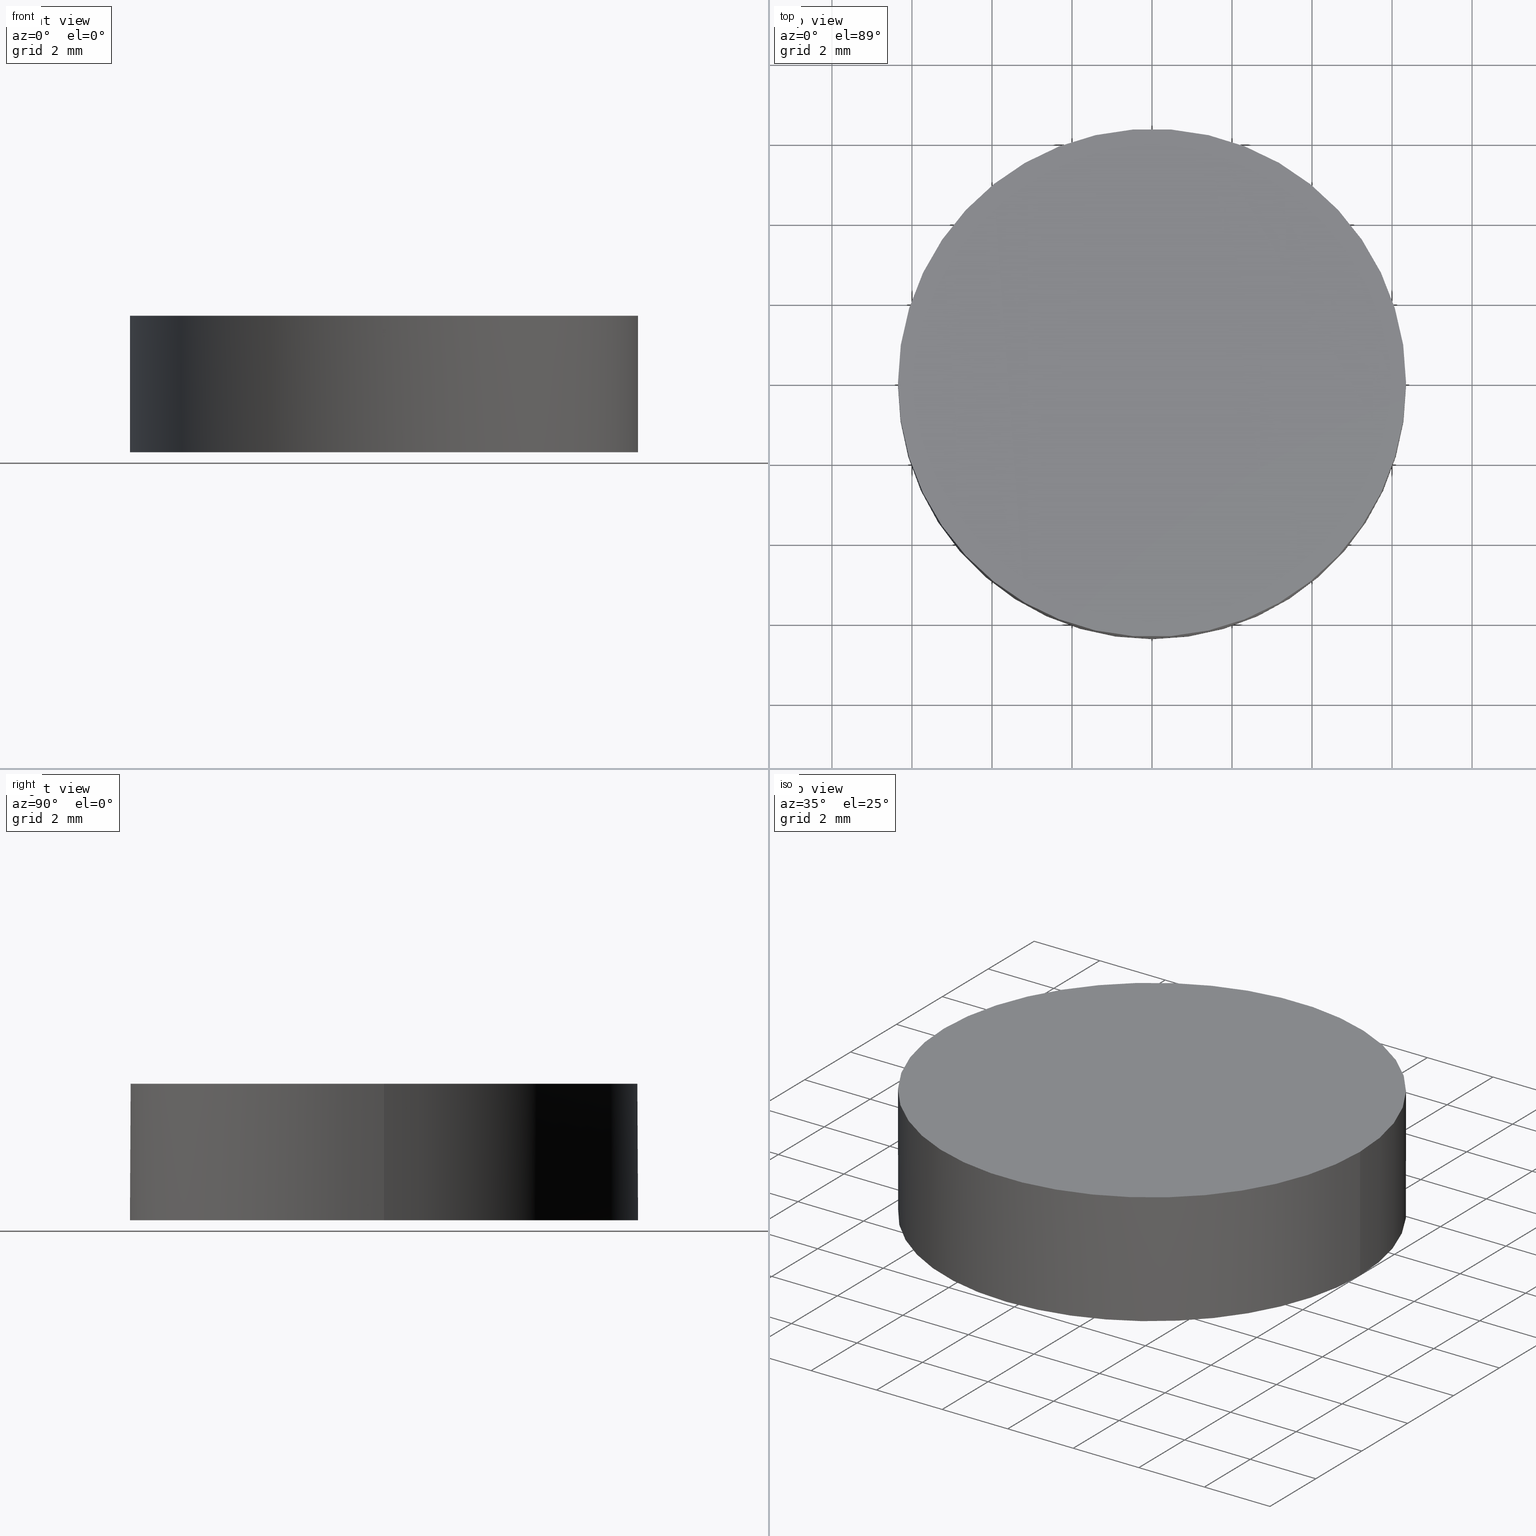
[diagram: canonical four-view strip — front | top / right | iso, engineering-drawing reading convention]
A machine part, canonical four-view strip (front | top / right | iso — engineering-drawing reading convention). The complete STEP part file that produces these views, byte-faithful:
ISO-10303-21;
HEADER;
FILE_DESCRIPTION (( 'STEP AP203' ),
    '1' );
FILE_NAME ('112-0119E BK7 pl-cv 12.7 F-125.STEP',
    '2019-01-14T11:44:51',
    ( '' ),
    ( '' ),
    'SwSTEP 2.0',
    'SolidWorks 2017',
    '' );
FILE_SCHEMA (( 'CONFIG_CONTROL_DESIGN' ));
ENDSEC;

DATA;
#1 = ORIENTED_EDGE ( 'NONE', *, *, #120, .F. ) ;
#2 = CALENDAR_DATE ( 2019, 14, 1 ) ;
#3 = ORIENTED_EDGE ( 'NONE', *, *, #49, .F. ) ;
#4 = LOCAL_TIME ( 13, 44, 51.00000000000000000, #213 ) ;
#5 = ORIENTED_EDGE ( 'NONE', *, *, #100, .T. ) ;
#6 = CARTESIAN_POINT ( 'NONE',  ( 2.498001805406600200E-016, 1.221245327087670000E-015, -0.3116876092362069800 ) ) ;
#7 = DIRECTION ( 'NONE',  ( 0.0000000000000000000, 0.0000000000000000000, 1.000000000000000000 ) ) ;
#8 = CARTESIAN_POINT ( 'NONE',  ( 0.0000000000000000000, 0.0000000000000000000, -64.84000000000000300 ) ) ;
#9 = CARTESIAN_POINT ( 'NONE',  ( -6.356528664066489800, 6.425951033630017400, -0.6330899617783269900 ) ) ;
#10 = CARTESIAN_POINT ( 'NONE',  ( 2.498001805406600200E-016, 1.221245327087670000E-015, 3.100000000000000500 ) ) ;
#11 = CIRCLE ( 'NONE', #129, 6.349999999999999600 ) ;
#12 = APPROVAL ( #131, 'UNSPECIFIED' ) ;
#13 = PERSON_AND_ORGANIZATION_ROLE ( 'creator' ) ;
#14 = ORIENTED_EDGE ( 'NONE', *, *, #92, .T. ) ;
#15 = APPROVAL_ROLE ( '' ) ;
#16 = CARTESIAN_POINT ( 'NONE',  ( -1.391880571784052100E-014, 6.349999999999981000, -0.3116876092362075300 ) ) ;
#17 = DATE_AND_TIME ( #2, #48 ) ;
#18 = CALENDAR_DATE ( 2019, 14, 1 ) ;
#19 = DIRECTION ( 'NONE',  ( 1.000000000000000000, 0.0000000000000000000, 0.0000000000000000000 ) ) ;
#20 = CARTESIAN_POINT ( 'NONE',  ( 6.349999999999999600, 1.221245327087670000E-015, -0.3116876092362069800 ) ) ;
#21 = LINE ( 'NONE', #224, #140 ) ;
#22 = CARTESIAN_POINT ( 'NONE',  ( -4.271726891306665100, -2.149036805498219400, 0.001348661855884010900 ) ) ;
#23 = CARTESIAN_POINT ( 'NONE',  ( -1.105452618250814200E-014, -6.425951033630023600, -0.3192068142882365000 ) ) ;
#24 = DIRECTION ( 'NONE',  ( 1.000000000000000000, 0.0000000000000000000, 0.0000000000000000000 ) ) ;
#25 = DIRECTION ( 'NONE',  ( 1.000000000000000000, 2.240790868895130200E-016, 1.936499352473490000E-016 ) ) ;
#26 = CARTESIAN_POINT ( 'NONE',  ( 4.271726891306651700, -2.149036805498218100, 0.001348661855880839600 ) ) ;
#27 = APPLICATION_PROTOCOL_DEFINITION ( 'international standard', 'config_control_design', 1994, #82 ) ;
#28 = DIRECTION ( 'NONE',  ( 0.0000000000000000000, 0.0000000000000000000, 1.000000000000000000 ) ) ;
#29 = ORIENTED_EDGE ( 'NONE', *, *, #49, .T. ) ;
#30 = PERSON_AND_ORGANIZATION ( #95, #32 ) ;
#31 = PERSON_AND_ORGANIZATION_ROLE ( 'classification_officer' ) ;
#32 = ORGANIZATION ( 'UNSPECIFIED', 'UNSPECIFIED', '' ) ;
#33 = LOCAL_TIME ( 13, 44, 51.00000000000000000, #107 ) ;
#34 = ORIENTED_EDGE ( 'NONE', *, *, #199, .F. ) ;
#35 = MANIFOLD_SOLID_BREP ( 'Imported1', #197 ) ;
#36 = EDGE_CURVE ( 'NONE', #98, #202, #53, .T. ) ;
#37 = FACE_OUTER_BOUND ( 'NONE', #123, .T. ) ;
#38 = CALENDAR_DATE ( 2019, 14, 1 ) ;
#39 = ORIENTED_EDGE ( 'NONE', *, *, #157, .T. ) ;
#40 = CC_DESIGN_PERSON_AND_ORGANIZATION_ASSIGNMENT ( #235, #13, ( #125 ) ) ;
#41 = CARTESIAN_POINT ( 'NONE',  ( 6.398493793489575600, 2.149036805498215900, -0.2092027377904508200 ) ) ;
#42 = CARTESIAN_POINT ( 'NONE',  ( -1.305848864697712000E-014, 2.149036805498214100, 0.1067526330159033200 ) ) ;
#43 = CARTESIAN_POINT ( 'NONE',  ( 2.498001805406600200E-016, 1.221245327087670000E-015, -0.3116876092362069800 ) ) ;
#44 = DIRECTION ( 'NONE',  ( 1.000000000000000000, 0.0000000000000000000, 0.0000000000000000000 ) ) ;
#45 = CARTESIAN_POINT ( 'NONE',  ( 2.498001805406600200E-016, 1.221245327087670000E-015, -0.3116876092362069800 ) ) ;
#46 = CARTESIAN_POINT ( 'NONE',  ( -2.123147063980236600, -6.425951033630022700, -0.3192068142882328300 ) ) ;
#47 = EDGE_LOOP ( 'NONE', ( #57, #153, #147 ) ) ;
#48 = LOCAL_TIME ( 13, 44, 51.00000000000000000, #126 ) ;
#49 = EDGE_CURVE ( 'NONE', #155, #85, #142, .T. ) ;
#50 = CC_DESIGN_APPROVAL ( #200, ( #172 ) ) ;
#51 = VERTEX_POINT ( 'NONE', #86 ) ;
#52 = CC_DESIGN_PERSON_AND_ORGANIZATION_ASSIGNMENT ( #30, #31, ( #172 ) ) ;
#53 = CIRCLE ( 'NONE', #81, 6.349999999999999600 ) ;
#54 = CARTESIAN_POINT ( 'NONE',  ( 2.123147063980211200, 6.425951033630018300, -0.3192068142882361100 ) ) ;
#55 = ADVANCED_FACE ( 'NONE', ( #101 ), #195, .F. ) ;
#56 = CARTESIAN_POINT ( 'NONE',  ( -2.862293735361731700E-014, 6.425951033630019200, -0.3192068142882318300 ) ) ;
#57 = ORIENTED_EDGE ( 'NONE', *, *, #154, .F. ) ;
#58 = CARTESIAN_POINT ( 'NONE',  ( 4.243710364661558800, -6.425951033630021800, -0.4239194834896737300 ) ) ;
#59 = ORIENTED_EDGE ( 'NONE', *, *, #120, .T. ) ;
#60 = APPROVAL_ROLE ( '' ) ;
#61 = CIRCLE ( 'NONE', #217, 6.349999999999999600 ) ;
#62 = CC_DESIGN_SECURITY_CLASSIFICATION ( #172, ( #125 ) ) ;
#63 = PERSON_AND_ORGANIZATION_ROLE ( 'design_supplier' ) ;
#64 = AXIS2_PLACEMENT_3D ( 'NONE', #45, #152, #233 ) ;
#65 = CALENDAR_DATE ( 2019, 14, 1 ) ;
#66 = CC_DESIGN_APPROVAL ( #12, ( #102 ) ) ;
#67 = PERSON_AND_ORGANIZATION ( #95, #32 ) ;
#68 = DIRECTION ( 'NONE',  ( 1.000000000000000000, 0.0000000000000000000, 0.0000000000000000000 ) ) ;
#69 = LINE ( 'NONE', #83, #164 ) ;
#70 = PERSON_AND_ORGANIZATION ( #95, #32 ) ;
#71 = CARTESIAN_POINT ( 'NONE',  ( -1.393436866253321800E-014, 6.425951033630018300, -0.3192068142882365000 ) ) ;
#72 = CARTESIAN_POINT ( 'NONE',  ( -4.271726891306666800, 2.149036805498214500, 0.001348661855883685700 ) ) ;
#73 = CARTESIAN_POINT ( 'NONE',  ( -2.137163856168693400, -2.149036805498219000, 0.1067526330159074700 ) ) ;
#74 = CARTESIAN_POINT ( 'NONE',  ( -6.349999999999999600, 1.998896044546239400E-015, 3.100000000000000500 ) ) ;
#75 = APPROVAL_DATE_TIME ( #198, #12 ) ;
#76 = DIRECTION ( 'NONE',  ( 0.0000000000000000000, 0.0000000000000000000, 1.000000000000000000 ) ) ;
#77 = PERSON_AND_ORGANIZATION_ROLE ( 'design_owner' ) ;
#78 = APPROVAL_STATUS ( 'not_yet_approved' ) ;
#79 = CC_DESIGN_DATE_AND_TIME_ASSIGNMENT ( #219, #228, ( #102 ) ) ;
#80 = EDGE_LOOP ( 'NONE', ( #204, #14, #234, #59, #192 ) ) ;
#81 = AXIS2_PLACEMENT_3D ( 'NONE', #6, #87, #19 ) ;
#82 = APPLICATION_CONTEXT ( 'configuration controlled 3d designs of mechanical parts and assemblies' ) ;
#83 = CARTESIAN_POINT ( 'NONE',  ( -6.349999999999999600, 1.998896044546239400E-015, -0.3116876092362069800 ) ) ;
#84 = PERSON_AND_ORGANIZATION ( #95, #32 ) ;
#85 = VERTEX_POINT ( 'NONE', #74 ) ;
#86 = CARTESIAN_POINT ( 'NONE',  ( -6.349999999999999600, 1.998896044546239400E-015, -0.3116876092362069800 ) ) ;
#87 = DIRECTION ( 'NONE',  ( 0.0000000000000000000, 0.0000000000000000000, 1.000000000000000000 ) ) ;
#88 = CC_DESIGN_DATE_AND_TIME_ASSIGNMENT ( #139, #194, ( #172 ) ) ;
#89 = APPROVAL_PERSON_ORGANIZATION ( #70, #12, #114 ) ;
#90 = CARTESIAN_POINT ( 'NONE',  ( 2.123147063980214400, -6.425951033630021800, -0.3192068142882361100 ) ) ;
#91 = CARTESIAN_POINT ( 'NONE',  ( -2.137163856168694800, 2.149036805498215000, 0.1067526330159072200 ) ) ;
#92 = EDGE_CURVE ( 'NONE', #202, #51, #178, .T. ) ;
#93 = CIRCLE ( 'NONE', #143, 64.84000000000000300 ) ;
#94 = DIRECTION ( 'NONE',  ( 0.0000000000000000000, 0.0000000000000000000, 1.000000000000000000 ) ) ;
#95 = PERSON ( 'UNSPECIFIED', 'UNSPECIFIED', 'UNSPECIFIED', ('UNSPECIFIED'), ('UNSPECIFIED'), ('UNSPECIFIED') ) ;
#96 = DIRECTION ( 'NONE',  ( 1.000000000000000000, 0.0000000000000000000, 0.0000000000000000000 ) ) ;
#97 = DIRECTION ( 'NONE',  ( 1.000000000000000000, 0.0000000000000000000, -0.0000000000000000000 ) ) ;
#98 = VERTEX_POINT ( 'NONE', #20 ) ;
#99 = CARTESIAN_POINT ( 'NONE',  ( -6.356528664066486200, -6.425951033630024500, -0.6330899617783269900 ) ) ;
#100 = EDGE_CURVE ( 'NONE', #98, #155, #21, .T. ) ;
#101 = FACE_OUTER_BOUND ( 'NONE', #47, .T. ) ;
#102 = PRODUCT_DEFINITION ( 'UNKNOWN', '', #125, #189 ) ;
#103 =( BOUNDED_SURFACE ( )  B_SPLINE_SURFACE ( 3, 3, ( 
 ( #9, #146, #207, #56 ),
 ( #185, #72, #91, #163 ),
 ( #205, #22, #73, #226 ),
 ( #99, #231, #46, #133 ) ),
 .UNSPECIFIED., .F., .F., .F. ) 
 B_SPLINE_SURFACE_WITH_KNOTS ( ( 4, 4 ),
 ( 4, 4 ),
 ( 0.0000000000000000000, 1.000000000000000000 ),
 ( 0.0000000000000000000, 1.000000000000000000 ),
 .UNSPECIFIED. ) 
 GEOMETRIC_REPRESENTATION_ITEM ( )  RATIONAL_B_SPLINE_SURFACE ( (
 ( 1.000000000000000000, 0.9991887001634776100, 0.9991887001634776100, 1.000000000000000000),
 ( 0.9967180051995863100, 0.9959093680449089300, 0.9959093680449089300, 0.9967180051995863100),
 ( 0.9967180051995863100, 0.9959093680449089300, 0.9959093680449089300, 0.9967180051995863100),
 ( 1.000000000000000000, 0.9991887001634776100, 0.9991887001634776100, 1.000000000000000000) ) ) 
 REPRESENTATION_ITEM ( '' )  SURFACE ( )  );
#104 = EDGE_LOOP ( 'NONE', ( #174, #210, #39, #5, #29 ) ) ;
#105 = AXIS2_PLACEMENT_3D ( 'NONE', #203, #176, #68 ) ;
#106 = ORIENTED_EDGE ( 'NONE', *, *, #92, .F. ) ;
#107 = COORDINATED_UNIVERSAL_TIME_OFFSET ( 2, 0, .AHEAD. ) ;
#108 = AXIS2_PLACEMENT_3D ( 'NONE', #190, #191, #97 ) ;
#109 = SHAPE_DEFINITION_REPRESENTATION ( #221, #170 ) ;
#110 = CARTESIAN_POINT ( 'NONE',  ( 4.243710364661555300, 6.425951033630018300, -0.4239194834896737300 ) ) ;
#111 = PERSON_AND_ORGANIZATION ( #95, #32 ) ;
#112 = DIRECTION ( 'NONE',  ( -0.0000000000000000000, -0.0000000000000000000, -1.000000000000000000 ) ) ;
#113 = APPROVAL_STATUS ( 'not_yet_approved' ) ;
#114 = APPROVAL_ROLE ( '' ) ;
#115 = FACE_OUTER_BOUND ( 'NONE', #80, .T. ) ;
#116 = COORDINATED_UNIVERSAL_TIME_OFFSET ( 2, 0, .AHEAD. ) ;
#117 = CC_DESIGN_PERSON_AND_ORGANIZATION_ASSIGNMENT ( #111, #232, ( #102 ) ) ;
#118 = DIRECTION ( 'NONE',  ( 0.0000000000000000000, 0.0000000000000000000, 1.000000000000000000 ) ) ;
#119 = PERSON_AND_ORGANIZATION ( #95, #32 ) ;
#120 = EDGE_CURVE ( 'NONE', #85, #155, #11, .T. ) ;
#121 = APPROVAL_PERSON_ORGANIZATION ( #67, #141, #15 ) ;
#122 = LOCAL_TIME ( 13, 44, 51.00000000000000000, #116 ) ;
#123 = EDGE_LOOP ( 'NONE', ( #106, #137, #34 ) ) ;
#124 = CARTESIAN_POINT ( 'NONE',  ( 6.356528664066487100, 6.425951033630020100, -0.6330899617783315400 ) ) ;
#125 = PRODUCT_DEFINITION_FORMATION_WITH_SPECIFIED_SOURCE ( 'ANY', '', #134, .NOT_KNOWN. ) ;
#126 = COORDINATED_UNIVERSAL_TIME_OFFSET ( 2, 0, .AHEAD. ) ;
#127 = CARTESIAN_POINT ( 'NONE',  ( 2.498001805406600200E-016, 1.221245327087670000E-015, -0.3116876092362069800 ) ) ;
#128 = DIRECTION ( 'NONE',  ( 1.000000000000000000, 0.0000000000000000000, 0.0000000000000000000 ) ) ;
#129 = AXIS2_PLACEMENT_3D ( 'NONE', #10, #112, #227 ) ;
#130 = PRODUCT_RELATED_PRODUCT_CATEGORY ( 'detail', '', ( #134 ) ) ;
#131 = APPROVAL_STATUS ( 'not_yet_approved' ) ;
#132 = FACE_OUTER_BOUND ( 'NONE', #104, .T. ) ;
#133 = CARTESIAN_POINT ( 'NONE',  ( -2.515349040166370300E-014, -6.425951033630022700, -0.3192068142882319400 ) ) ;
#134 = PRODUCT ( '112-0119E BK7 pl-cv 12.7 F-125', '112-0119E BK7 pl-cv 12.7 F-125', '', ( #188 ) ) ;
#135 = APPLICATION_PROTOCOL_DEFINITION ( 'international standard', 'config_control_design', 1994, #136 ) ;
#136 = APPLICATION_CONTEXT ( 'configuration controlled 3d designs of mechanical parts and assemblies' ) ;
#137 = ORIENTED_EDGE ( 'NONE', *, *, #154, .T. ) ;
#138 = DIRECTION ( 'NONE',  ( 0.0000000000000000000, 0.0000000000000000000, 1.000000000000000000 ) ) ;
#139 = DATE_AND_TIME ( #38, #4 ) ;
#140 = VECTOR ( 'NONE', #181, 1000.000000000000000 ) ;
#141 = APPROVAL ( #78, 'UNSPECIFIED' ) ;
#142 = CIRCLE ( 'NONE', #105, 6.349999999999999600 ) ;
#143 = AXIS2_PLACEMENT_3D ( 'NONE', #8, #25, #187 ) ;
#144 = FACE_OUTER_BOUND ( 'NONE', #196, .T. ) ;
#145 = CARTESIAN_POINT ( 'NONE',  ( 6.398493793489576500, -2.149036805498217600, -0.2092027377904504500 ) ) ;
#146 = CARTESIAN_POINT ( 'NONE',  ( -4.243710364661572100, 6.425951033630016500, -0.4239194834896705100 ) ) ;
#147 = ORIENTED_EDGE ( 'NONE', *, *, #157, .F. ) ;
#148 =( NAMED_UNIT ( * ) SI_UNIT ( $, .STERADIAN. ) SOLID_ANGLE_UNIT ( ) );
#149 = DIRECTION ( 'NONE',  ( 1.000000000000000000, 0.0000000000000000000, 0.0000000000000000000 ) ) ;
#150 = CYLINDRICAL_SURFACE ( 'NONE', #64, 6.349999999999999600 ) ;
#151 = APPROVAL_DATE_TIME ( #17, #141 ) ;
#152 = DIRECTION ( 'NONE',  ( 0.0000000000000000000, 0.0000000000000000000, 1.000000000000000000 ) ) ;
#153 = ORIENTED_EDGE ( 'NONE', *, *, #36, .F. ) ;
#154 = EDGE_CURVE ( 'NONE', #202, #182, #93, .T. ) ;
#155 = VERTEX_POINT ( 'NONE', #161 ) ;
#156 = DATE_AND_TIME ( #183, #223 ) ;
#157 = EDGE_CURVE ( 'NONE', #182, #98, #222, .T. ) ;
#158 = ADVANCED_FACE ( 'NONE', ( #37 ), #103, .F. ) ;
#159 = APPROVAL_DATE_TIME ( #156, #200 ) ;
#160 = CARTESIAN_POINT ( 'NONE',  ( 2.498001805406600200E-016, 1.221245327087670000E-015, -0.3116876092362069800 ) ) ;
#161 = CARTESIAN_POINT ( 'NONE',  ( 6.349999999999999600, 1.221245327087670000E-015, 3.100000000000000500 ) ) ;
#162 = CC_DESIGN_APPROVAL ( #141, ( #125 ) ) ;
#163 = CARTESIAN_POINT ( 'NONE',  ( -2.862293735361731700E-014, 2.149036805498214500, 0.1067526330159081400 ) ) ;
#164 = VECTOR ( 'NONE', #118, 1000.000000000000000 ) ;
#165 = CARTESIAN_POINT ( 'NONE',  ( -1.209538023684112500E-014, -2.149036805498219400, 0.1067526330159036900 ) ) ;
#166 = CARTESIAN_POINT ( 'NONE',  ( 2.137163856168667700, 2.149036805498215400, 0.1067526330159037200 ) ) ;
#167 = AXIS2_PLACEMENT_3D ( 'NONE', #160, #7, #24 ) ;
#168 = PLANE ( 'NONE',  #108 ) ;
#169 = SECURITY_CLASSIFICATION_LEVEL ( 'unclassified' ) ;
#170 = ADVANCED_BREP_SHAPE_REPRESENTATION ( '112-0119E BK7 pl-cv 12.7 F-125', ( #35, #220 ), #177 ) ;
#171 = CARTESIAN_POINT ( 'NONE',  ( 2.498001805406600200E-016, 1.221245327087670000E-015, -0.3116876092362069800 ) ) ;
#172 = SECURITY_CLASSIFICATION ( '', '', #169 ) ;
#173 = AXIS2_PLACEMENT_3D ( 'NONE', #127, #76, #128 ) ;
#174 = ORIENTED_EDGE ( 'NONE', *, *, #215, .F. ) ;
#175 = AXIS2_PLACEMENT_3D ( 'NONE', #43, #28, #44 ) ;
#176 = DIRECTION ( 'NONE',  ( -0.0000000000000000000, -0.0000000000000000000, -1.000000000000000000 ) ) ;
#177 =( GEOMETRIC_REPRESENTATION_CONTEXT ( 3 ) GLOBAL_UNCERTAINTY_ASSIGNED_CONTEXT ( ( #218 ) ) GLOBAL_UNIT_ASSIGNED_CONTEXT ( ( #211, #212, #148 ) ) REPRESENTATION_CONTEXT ( 'NONE', 'WORKASPACE' ) );
#178 = CIRCLE ( 'NONE', #173, 6.349999999999999600 ) ;
#179 = ADVANCED_FACE ( 'NONE', ( #132 ), #150, .T. ) ;
#180 = COORDINATED_UNIVERSAL_TIME_OFFSET ( 2, 0, .AHEAD. ) ;
#181 = DIRECTION ( 'NONE',  ( 0.0000000000000000000, 0.0000000000000000000, 1.000000000000000000 ) ) ;
#182 = VERTEX_POINT ( 'NONE', #214 ) ;
#183 = CALENDAR_DATE ( 2019, 14, 1 ) ;
#184 = CARTESIAN_POINT ( 'NONE',  ( 4.271726891306650800, 2.149036805498215400, 0.001348661855880487500 ) ) ;
#185 = CARTESIAN_POINT ( 'NONE',  ( -6.398493793489576500, 2.149036805498213200, -0.2092027377904462100 ) ) ;
#186 = CC_DESIGN_PERSON_AND_ORGANIZATION_ASSIGNMENT ( #119, #77, ( #134 ) ) ;
#187 = DIRECTION ( 'NONE',  ( -2.240790868895131200E-016, 1.000000000000000000, 4.280625480510319500E-016 ) ) ;
#188 = MECHANICAL_CONTEXT ( 'NONE', #82, 'mechanical' ) ;
#189 = DESIGN_CONTEXT ( 'detailed design', #136, 'design' ) ;
#190 = CARTESIAN_POINT ( 'NONE',  ( 0.0000000000000000000, 13.15799999999999900, 3.100000000000000500 ) ) ;
#191 = DIRECTION ( 'NONE',  ( 0.0000000000000000000, 0.0000000000000000000, 1.000000000000000000 ) ) ;
#192 = ORIENTED_EDGE ( 'NONE', *, *, #100, .F. ) ;
#193 = CC_DESIGN_PERSON_AND_ORGANIZATION_ASSIGNMENT ( #230, #63, ( #125 ) ) ;
#194 = DATE_TIME_ROLE ( 'classification_date' ) ;
#195 =( BOUNDED_SURFACE ( )  B_SPLINE_SURFACE ( 3, 3, ( 
 ( #71, #54, #110, #124 ),
 ( #42, #166, #184, #41 ),
 ( #165, #206, #26, #145 ),
 ( #23, #90, #58, #209 ) ),
 .UNSPECIFIED., .F., .F., .F. ) 
 B_SPLINE_SURFACE_WITH_KNOTS ( ( 4, 4 ),
 ( 4, 4 ),
 ( 0.0000000000000000000, 1.000000000000000000 ),
 ( 0.0000000000000000000, 1.000000000000000000 ),
 .UNSPECIFIED. ) 
 GEOMETRIC_REPRESENTATION_ITEM ( )  RATIONAL_B_SPLINE_SURFACE ( (
 ( 1.000000000000000000, 0.9991887001634776100, 0.9991887001634776100, 1.000000000000000000),
 ( 0.9967180051995863100, 0.9959093680449089300, 0.9959093680449089300, 0.9967180051995863100),
 ( 0.9967180051995863100, 0.9959093680449089300, 0.9959093680449089300, 0.9967180051995863100),
 ( 1.000000000000000000, 0.9991887001634776100, 0.9991887001634776100, 1.000000000000000000) ) ) 
 REPRESENTATION_ITEM ( '' )  SURFACE ( )  );
#196 = EDGE_LOOP ( 'NONE', ( #3, #1 ) ) ;
#197 = CLOSED_SHELL ( 'NONE', ( #158, #201, #179, #55, #208 ) ) ;
#198 = DATE_AND_TIME ( #65, #122 ) ;
#199 = EDGE_CURVE ( 'NONE', #51, #182, #61, .T. ) ;
#200 = APPROVAL ( #113, 'UNSPECIFIED' ) ;
#201 = ADVANCED_FACE ( 'NONE', ( #115 ), #225, .T. ) ;
#202 = VERTEX_POINT ( 'NONE', #16 ) ;
#203 = CARTESIAN_POINT ( 'NONE',  ( 2.498001805406600200E-016, 1.221245327087670000E-015, 3.100000000000000500 ) ) ;
#204 = ORIENTED_EDGE ( 'NONE', *, *, #36, .T. ) ;
#205 = CARTESIAN_POINT ( 'NONE',  ( -6.398493793489574700, -2.149036805498220300, -0.2092027377904459000 ) ) ;
#206 = CARTESIAN_POINT ( 'NONE',  ( 2.137163856168668600, -2.149036805498218500, 0.1067526330159041200 ) ) ;
#207 = CARTESIAN_POINT ( 'NONE',  ( -2.123147063980239700, 6.425951033630017400, -0.3192068142882327800 ) ) ;
#208 = ADVANCED_FACE ( 'NONE', ( #144 ), #168, .T. ) ;
#209 = CARTESIAN_POINT ( 'NONE',  ( 6.356528664066490600, -6.425951033630021800, -0.6330899617783315400 ) ) ;
#210 = ORIENTED_EDGE ( 'NONE', *, *, #199, .T. ) ;
#211 =( LENGTH_UNIT ( ) NAMED_UNIT ( * ) SI_UNIT ( .MILLI., .METRE. ) );
#212 =( NAMED_UNIT ( * ) PLANE_ANGLE_UNIT ( ) SI_UNIT ( $, .RADIAN. ) );
#213 = COORDINATED_UNIVERSAL_TIME_OFFSET ( 2, 0, .AHEAD. ) ;
#214 = CARTESIAN_POINT ( 'NONE',  ( -1.107300131434371700E-014, -6.349999999999981000, -0.3116876092362075300 ) ) ;
#215 = EDGE_CURVE ( 'NONE', #51, #85, #69, .T. ) ;
#216 = APPROVAL_PERSON_ORGANIZATION ( #84, #200, #60 ) ;
#217 = AXIS2_PLACEMENT_3D ( 'NONE', #171, #138, #149 ) ;
#218 = UNCERTAINTY_MEASURE_WITH_UNIT (LENGTH_MEASURE( 1.000000000000000100E-005 ), #211, 'distance_accuracy_value', 'NONE');
#219 = DATE_AND_TIME ( #18, #33 ) ;
#220 = AXIS2_PLACEMENT_3D ( 'NONE', #229, #94, #96 ) ;
#221 = PRODUCT_DEFINITION_SHAPE ( 'NONE', 'NONE',  #102 ) ;
#222 = CIRCLE ( 'NONE', #167, 6.349999999999999600 ) ;
#223 = LOCAL_TIME ( 13, 44, 51.00000000000000000, #180 ) ;
#224 = CARTESIAN_POINT ( 'NONE',  ( 6.349999999999999600, 1.221245327087670000E-015, -0.3116876092362069800 ) ) ;
#225 = CYLINDRICAL_SURFACE ( 'NONE', #175, 6.349999999999999600 ) ;
#226 = CARTESIAN_POINT ( 'NONE',  ( -2.688821387764051000E-014, -2.149036805498219000, 0.1067526330159083600 ) ) ;
#227 = DIRECTION ( 'NONE',  ( 1.000000000000000000, 0.0000000000000000000, 0.0000000000000000000 ) ) ;
#228 = DATE_TIME_ROLE ( 'creation_date' ) ;
#229 = CARTESIAN_POINT ( 'NONE',  ( 0.0000000000000000000, 0.0000000000000000000, 0.0000000000000000000 ) ) ;
#230 = PERSON_AND_ORGANIZATION ( #95, #32 ) ;
#231 = CARTESIAN_POINT ( 'NONE',  ( -4.243710364661568600, -6.425951033630023600, -0.4239194834896705100 ) ) ;
#232 = PERSON_AND_ORGANIZATION_ROLE ( 'creator' ) ;
#233 = DIRECTION ( 'NONE',  ( 1.000000000000000000, 0.0000000000000000000, 0.0000000000000000000 ) ) ;
#234 = ORIENTED_EDGE ( 'NONE', *, *, #215, .T. ) ;
#235 = PERSON_AND_ORGANIZATION ( #95, #32 ) ;
ENDSEC;
END-ISO-10303-21;
